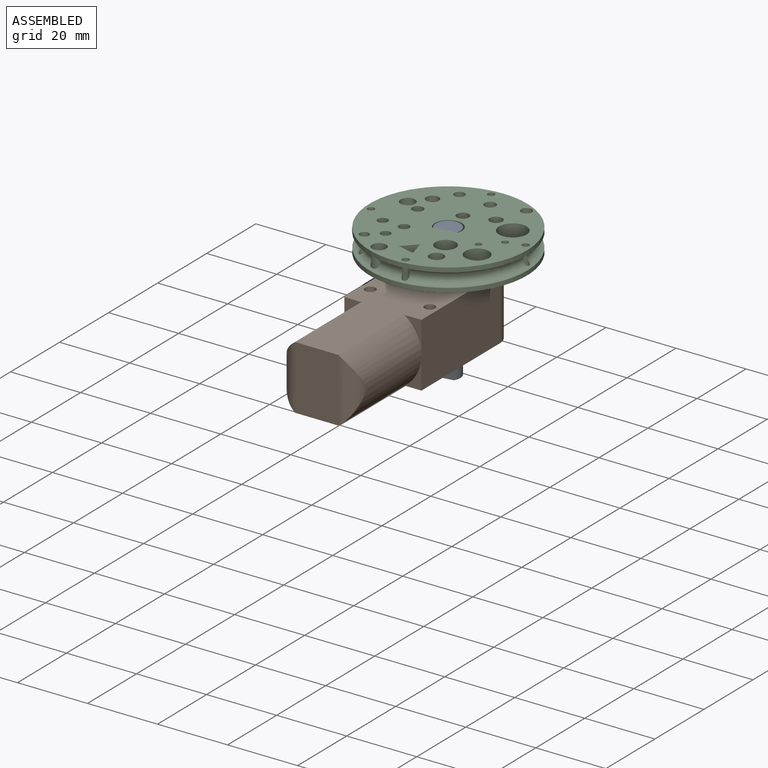
[diagram: assembled view]
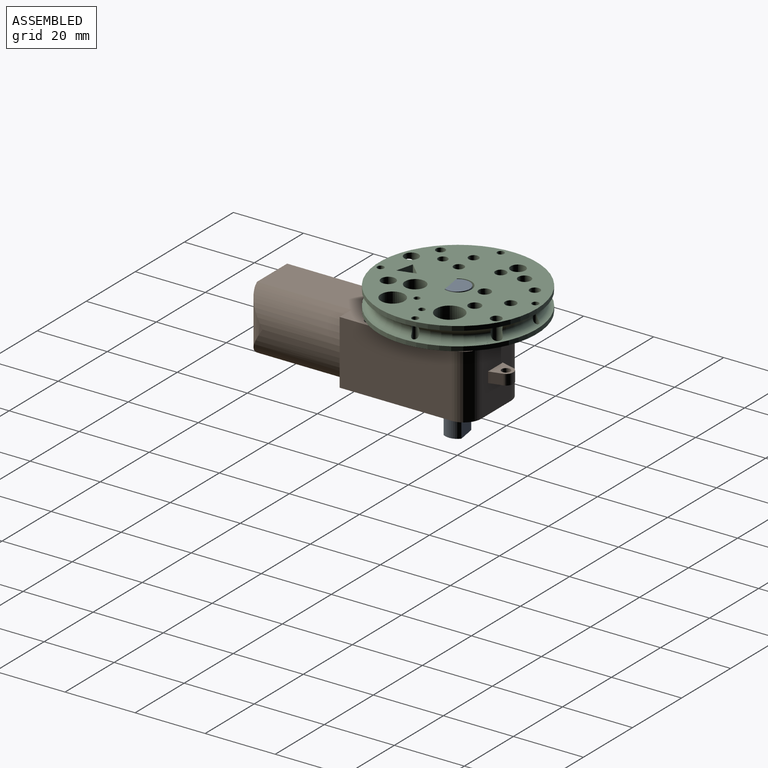
[diagram: assembled view, second angle]
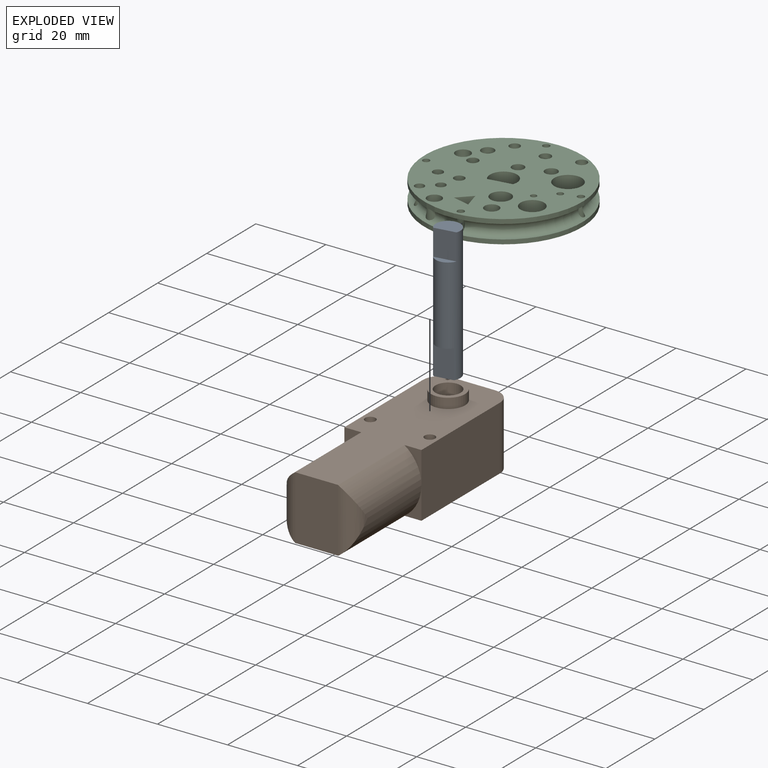
[diagram: exploded view]
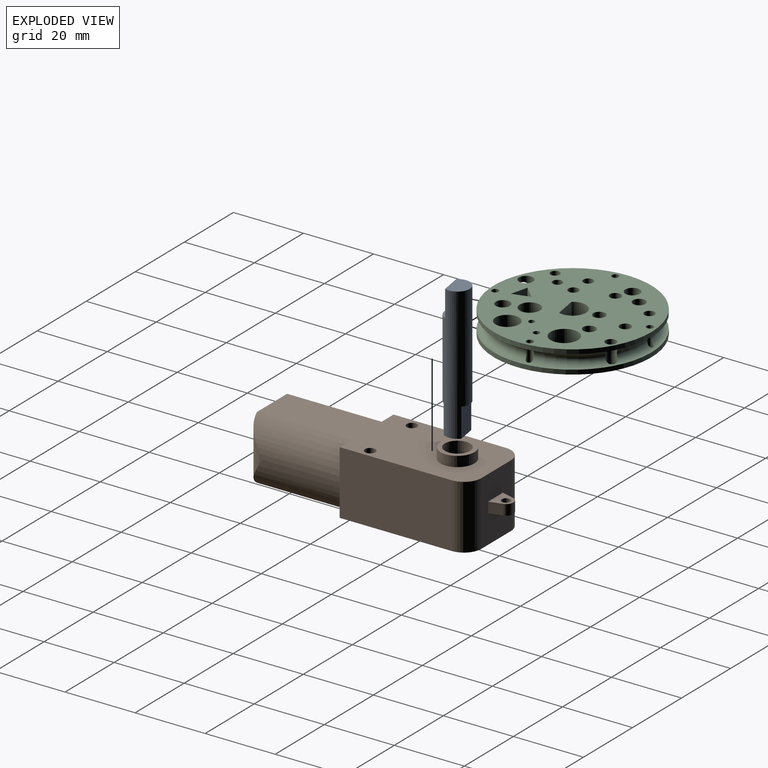
[diagram: exploded view, second angle]
ASSEMBLY  parts=3 mates=2
PART A: 9 faces, bbox 7x7x38 mm
  f0: plane 7x4.6mm, normal (0,0,1), area 29.7mm2, adj f2,f5,f7
  f1: plane 7x5.25mm, normal (0,0,-1), area 31mm2, adj f2,f3
  f2: cylinder r=3.5mm len=38mm, axis (0,0,-1), area 682.1mm2, adj f0,f1,f3,f4,f5,f6,f7,f8
  f3: plane 7.5x6.06mm, normal (0,1,0), area 45.5mm2, adj f1,f2,f4
  f4: plane 6.06x1.75mm, normal (0,0,-1), area 7.5mm2, adj f2,f3
  f5: plane 8.25x5.28mm, normal (0,-1,0), area 43.5mm2, adj f0,f2,f6
  f6: plane 5.28x1.2mm, normal (0,0,1), area 4.4mm2, adj f2,f5
  f7: plane 8.25x5.28mm, normal (0,1,0), area 43.5mm2, adj f0,f2,f8
  f8: plane 5.28x1.2mm, normal (0,0,1), area 4.4mm2, adj f2,f7
PART B: 33 faces, bbox 22x69.1x23.2 mm
  f0: cylinder r=5mm len=18.25mm, axis (0,0,-1), area 81.4mm2, adj f4,f5,f7,f26
  f1: cylinder r=5mm len=18.25mm, axis (0,0,-1), area 81.4mm2, adj f4,f5,f7,f24
  f2: plane 32x18.25mm, normal (1,0,0), area 584mm2, adj f4,f5,f8,f23,f25
  f3: plane 32x18.25mm, normal (-1,0,0), area 584mm2, adj f4,f5,f9,f27,f28
  f4: plane 64x22mm, normal (0,0,1), area 1046.9mm2, adj f0,f1,f2,f3,f6,f7,f8,f9
  f5: plane 64x22mm, normal (0,0,-1), area 1036.2mm2, adj f0,f1,f2,f3,f6,f7,f8,f9
  f6: plane 18.25x12mm, normal (0,1,0), area 201mm2, adj f4,f5,f8,f9,f15,f16,f17,f18
  f7: plane 18.25x12mm, normal (0,-1,0), area 219mm2, adj f0,f1,f4,f5
  f8: cylinder r=5mm len=18.25mm, axis (0,0,-1), area 143.3mm2, adj f2,f4,f5,f6
  f9: cylinder r=5mm len=18.25mm, axis (0,0,-1), area 143.3mm2, adj f3,f4,f5,f6
  f10: cylinder r=1.5mm len=18.25mm, axis (0,0,-1), area 172mm2, adj f4,f5
  f11: cylinder r=1.5mm len=18.25mm, axis (0,0,-1), area 172mm2, adj f4,f5
  f12: cylinder r=4.85mm len=9.7mm, axis (0,0,-1), area 88.4mm2, adj f4,f14
  f13: cylinder r=3.6mm len=21.65mm, axis (0,0,-1), area 489.7mm2, adj f14,f30
  f14: plane 9.7x9.7mm, normal (0,0,1), area 33.2mm2, adj f12,f13
  f15: plane 3.62x3mm, normal (0.97,0.26,0), area 11.2mm2, adj f6,f16,f18,f21
  f16: plane 6x5.1mm, normal (0,0,-1), area 17.8mm2, adj f6,f15,f17,f19,f20,f21,f22
  f17: plane 3.62x3mm, normal (-0.97,0.26,0), area 11.2mm2, adj f6,f16,f18,f20
  f18: plane 6x5.1mm, normal (0,0,1), area 17.8mm2, adj f6,f15,f17,f19,f20,f21,f22
  f19: plane 3x0.2mm, normal (0,1,0), area 0.6mm2, adj f16,f18,f20,f21
  f20: cylinder r=2mm len=3mm, axis (0,0,-1), area 7.9mm2, adj f16,f17,f18,f19
  f21: cylinder r=2mm len=3mm, axis (0,0,-1), area 7.9mm2, adj f15,f16,f18,f19
  f22: cylinder r=1.25mm len=3mm, axis (0,0,1), area 23.6mm2, adj f16,f18
  f23: plane 9.13x4.86mm, normal (0,-1,0), area 13.2mm2, adj f2,f5,f24
  f24: cylinder r=11mm len=27mm, axis (0,-1,0), area 539.6mm2, adj f1,f4,f5,f23,f25
  f25: plane 9.13x4.86mm, normal (0,-1,0), area 13.2mm2, adj f2,f4,f24
  f26: cylinder r=11mm len=27mm, axis (0,-1,0), area 539.6mm2, adj f0,f4,f5,f27,f28
  f27: plane 9.13x4.86mm, normal (0,-1,0), area 13.2mm2, adj f3,f5,f26
  f28: plane 9.13x4.86mm, normal (0,-1,0), area 13.2mm2, adj f3,f4,f26
  f29: cylinder r=4.85mm len=9.7mm, axis (0,0,1), area 15.2mm2, adj f5,f30
  f30: plane 9.7x9.7mm, normal (0,0,-1), area 33.2mm2, adj f13,f29
  f31: cylinder r=1.85mm len=3.7mm, axis (0,0,1), area 23.2mm2, adj f5,f32
  f32: plane 3.7x3.7mm, normal (0,0,-1), area 10.8mm2, adj f31
PART C: 38 faces, bbox 48.7x48.7x8.8 mm
  f0: cylinder r=22.5mm len=45mm, axis (0,0,-1), area 176.7mm2, adj f36,f37
  f1: cylinder r=3.85mm len=7.75mm, axis (0,0,-1), area 124.5mm2, adj f2,f3,f4
  f2: plane 7.75x6.7mm, normal (0,-1,0), area 51.9mm2, adj f1,f3,f4
  f3: plane 9.5x9.5mm, normal (0,0,1), area 33.6mm2, adj f1,f2,f5
  f4: plane 45x45mm, normal (0,0,-1), area 1292.2mm2, adj f1,f2,f6,f8,f11,f12,f13,f14
  f5: cylinder r=4.75mm len=9.5mm, axis (0,0,-1), area 29.8mm2, adj f3,f10
  f6: cylinder r=2.88mm len=8.75mm, axis (0,0,-1), area 126.3mm2, adj f4,f7,f9,f10,f36
  f7: cylinder r=7.95mm len=15.81mm, axis (0,0,-1), area 56.3mm2, adj f6,f8,f10,f36
  f8: cylinder r=1.71mm len=8.75mm, axis (0,0,-1), area 85.2mm2, adj f4,f7,f9,f10,f36
  f9: cylinder r=7.95mm len=14.24mm, axis (0,0,-1), area 40.9mm2, adj f6,f8,f10,f36
  f10: plane 15.9x15.81mm, normal (0,0,1), area 118.6mm2, adj f5,f6,f7,f8,f9
  f11: plane 6.5x4.68mm, normal (0.4,-0.92,0), area 33.2mm2, adj f4,f12,f13,f36
  f12: plane 6.5x5.08mm, normal (-0.99,0.11,0), area 33.2mm2, adj f4,f11,f13,f36
  f13: plane 6.5x4.12mm, normal (0.59,0.81,0), area 33.2mm2, adj f4,f11,f12,f36
  f14: cylinder r=0.97mm len=6.5mm, axis (0,0,-1), area 29.9mm2, adj f4,f36,f37
  f15: cylinder r=0.97mm len=6.5mm, axis (0,0,-1), area 30mm2, adj f4,f36,f37
  f16: cylinder r=0.97mm len=6.5mm, axis (0,0,-1), area 30mm2, adj f4,f36,f37
  f17: cylinder r=0.97mm len=6.5mm, axis (0,0,-1), area 30mm2, adj f4,f36,f37
  f18: cylinder r=2.02mm len=6.5mm, axis (0,0,-1), area 70mm2, adj f4,f36,f37
  f19: cylinder r=1.56mm len=6.5mm, axis (0,0,-1), area 63.8mm2, adj f4,f36
  f20: cylinder r=1.79mm len=6.5mm, axis (0,0,-1), area 73.3mm2, adj f4,f36
  f21: cylinder r=1.59mm len=6.5mm, axis (0,0,-1), area 64.8mm2, adj f4,f36
  f22: cylinder r=3.94mm len=7.88mm, axis (0,0,-1), area 160.8mm2, adj f4,f36
  f23: cylinder r=3.37mm len=6.73mm, axis (0,0,-1), area 137.5mm2, adj f4,f36
  f24: cylinder r=2.03mm len=6.5mm, axis (0,0,-1), area 83mm2, adj f4,f36
  f25: cylinder r=1.36mm len=6.5mm, axis (0,0,-1), area 55.3mm2, adj f4,f36
  f26: cylinder r=1.42mm len=6.5mm, axis (0,0,-1), area 57.9mm2, adj f4,f36
  f27: cylinder r=1.31mm len=6.5mm, axis (0,0,-1), area 44.9mm2, adj f4,f36,f37
  f28: cylinder r=2.08mm len=6.5mm, axis (0,0,-1), area 85.1mm2, adj f4,f36
  f29: cylinder r=0.9mm len=6.5mm, axis (0,0,-1), area 36.9mm2, adj f4,f36
  f30: cylinder r=1.53mm len=6.5mm, axis (0,0,-1), area 48.1mm2, adj f4,f36,f37
  f31: cylinder r=1.77mm len=6.5mm, axis (0,0,-1), area 72.4mm2, adj f4,f36
  f32: cylinder r=1.46mm len=6.5mm, axis (0,0,-1), area 59.7mm2, adj f4,f36
  f33: cylinder r=0.86mm len=6.5mm, axis (0,0,-1), area 35mm2, adj f4,f36
  f34: cylinder r=1.46mm len=6.5mm, axis (0,0,-1), area 59.5mm2, adj f4,f36
  f35: cylinder r=22.5mm len=45mm, axis (0,0,-1), area 176.7mm2, adj f4,f37
  f36: plane 45x45mm, normal (0,0,1), area 1140mm2, adj f0,f6,f7,f8,f9,f11,f12,f13
  f37: torus R=22.51mm, axis (0,0,1), area 770mm2, adj f0,f14,f15,f16,f17,f18,f27,f30
PLACE A rot(axis=(1,0.08,0),180deg) t=(39.98,75.45,29.15)mm
PLACE B t=(-0.45,-1.45,-0.17)mm fixed
PLACE C rot(axis=(1,0.08,0),180deg) t=(54.65,0.77,29.15)mm
MATE fastened C.f2 <-> A.f3  axis (-0.16,0.99,0) through (-0.17,25.98,29.15)mm
MATE revolute A.f2 <-> B.f12  axis (0,0,1) through (-0.45,27.7,10.15)mm
